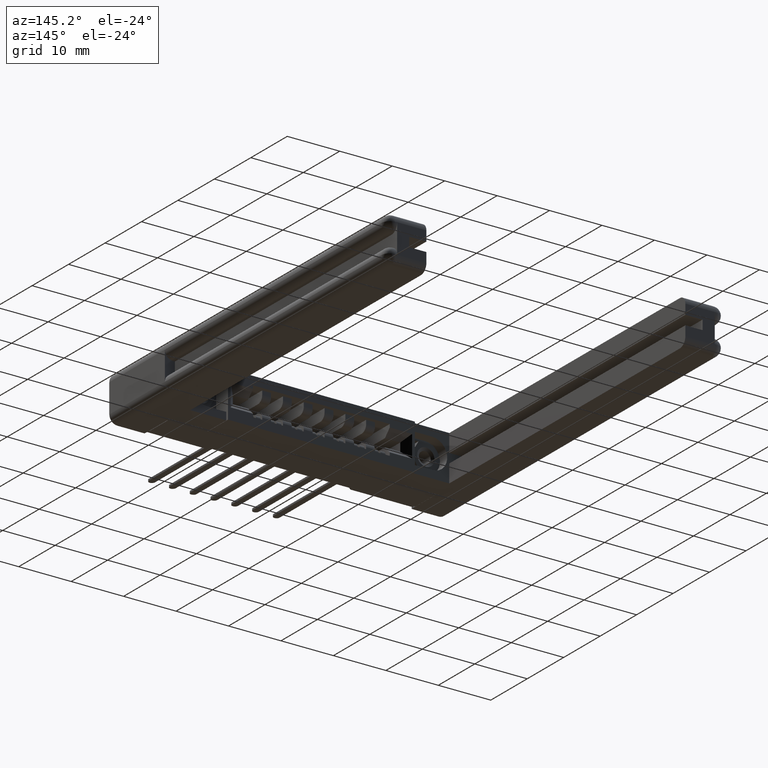
[diagram: clean part render]
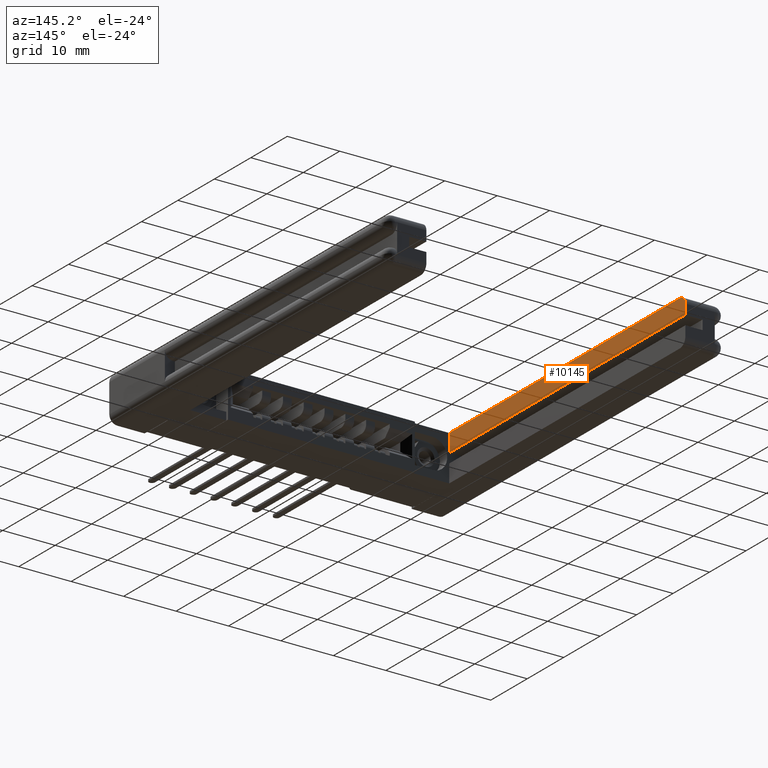
[diagram: same view with one face highlighted and labeled with its STEP entity id]
A machine part, auxiliary view. The second image highlights one B-rep face of the part: STEP entity #10145.
In plain terms, the highlighted planar face has unit normal (1, -0, 0).
Its self-contained STEP definition (entity closure, byte-faithful):
#49 = CARTESIAN_POINT ( 'NONE',  ( 0.2950000000000062572, 0.4500000000000002331, -0.3400000000000031886 ) ) ;
#120 = LINE ( 'NONE', #49, #10725 ) ;
#303 = PLANE ( 'NONE',  #9910 ) ;
#368 = DIRECTION ( 'NONE',  ( 1.000000000000000000, -5.915108984173514150E-16, 4.510281037539700911E-17 ) ) ;
#1310 = VECTOR ( 'NONE', #7962, 39.37007874015748143 ) ;
#1508 = EDGE_CURVE ( 'NONE', #12540, #2409, #10684, .T. ) ;
#1889 = EDGE_LOOP ( 'NONE', ( #3576, #4886, #8629, #7292, #2285 ) ) ;
#2285 = ORIENTED_EDGE ( 'NONE', *, *, #11294, .F. ) ;
#2409 = VERTEX_POINT ( 'NONE', #9083 ) ;
#3576 = ORIENTED_EDGE ( 'NONE', *, *, #8263, .T. ) ;
#3895 = LINE ( 'NONE', #6923, #1310 ) ;
#4477 = CARTESIAN_POINT ( 'NONE',  ( 0.2950000000000065348, 3.000000000000006661, -0.06000000000000130923 ) ) ;
#4797 = DIRECTION ( 'NONE',  ( 4.510281037539688585E-17, -2.334284690065025688E-16, 1.000000000000000000 ) ) ;
#4886 = ORIENTED_EDGE ( 'NONE', *, *, #10601, .T. ) ;
#4941 = LINE ( 'NONE', #11770, #6797 ) ;
#5316 = EDGE_CURVE ( 'NONE', #9702, #12540, #120, .T. ) ;
#5494 = CIRCLE ( 'NONE', #9898, 0.05999999999999990757 ) ;
#5626 = VERTEX_POINT ( 'NONE', #6297 ) ;
#5832 = CARTESIAN_POINT ( 'NONE',  ( 0.2950000000000065348, 3.000000000000006661, -8.878505979408855953E-16 ) ) ;
#6297 = CARTESIAN_POINT ( 'NONE',  ( 0.2950000000000065348, 3.000000000000006661, -0.1345000000000018126 ) ) ;
#6306 = DIRECTION ( 'NONE',  ( 5.691349986800556753E-16, 1.000000000000000000, -2.845674993400278377E-16 ) ) ;
#6551 = CARTESIAN_POINT ( 'NONE',  ( 0.2950000000000032596, 0.4500000000000002331, -8.878505979408855953E-16 ) ) ;
#6797 = VECTOR ( 'NONE', #4797, 39.37007874015748143 ) ;
#6858 = CARTESIAN_POINT ( 'NONE',  ( 0.2950000000000032596, 0.4500000000000002331, -0.1345000000000017015 ) ) ;
#6923 = CARTESIAN_POINT ( 'NONE',  ( 0.2950000000000032596, 0.4500000000000001221, -0.1345000000000017015 ) ) ;
#7159 = CARTESIAN_POINT ( 'NONE',  ( 0.2950000000000065348, 2.940000000000007052, -0.06000000000000130923 ) ) ;
#7292 = ORIENTED_EDGE ( 'NONE', *, *, #5316, .F. ) ;
#7356 = VECTOR ( 'NONE', #8707, 39.37007874015748143 ) ;
#7962 = DIRECTION ( 'NONE',  ( -5.915108984173514150E-16, -1.000000000000000000, 2.334284690065039000E-16 ) ) ;
#8149 = DIRECTION ( 'NONE',  ( 4.510281037539688585E-17, -2.334284690065025688E-16, 1.000000000000000000 ) ) ;
#8263 = EDGE_CURVE ( 'NONE', #5626, #9534, #4941, .T. ) ;
#8289 = DIRECTION ( 'NONE',  ( 5.915108984173514150E-16, 1.000000000000000000, -2.334284690065039000E-16 ) ) ;
#8629 = ORIENTED_EDGE ( 'NONE', *, *, #1508, .F. ) ;
#8707 = DIRECTION ( 'NONE',  ( 5.915108984173514150E-16, 1.000000000000000000, -2.334284690065039000E-16 ) ) ;
#9083 = CARTESIAN_POINT ( 'NONE',  ( 0.2950000000000065348, 2.940000000000007052, -8.878505979408855953E-16 ) ) ;
#9244 = DIRECTION ( 'NONE',  ( 1.000000000000000000, 8.325563096230176097E-16, 4.510281037539667631E-17 ) ) ;
#9262 = FACE_OUTER_BOUND ( 'NONE', #1889, .T. ) ;
#9534 = VERTEX_POINT ( 'NONE', #4477 ) ;
#9702 = VERTEX_POINT ( 'NONE', #6858 ) ;
#9898 = AXIS2_PLACEMENT_3D ( 'NONE', #7159, #9244, #6306 ) ;
#9910 = AXIS2_PLACEMENT_3D ( 'NONE', #10322, #368, #8289 ) ;
#10145 = ADVANCED_FACE ( 'NONE', ( #9262 ), #303, .T. ) ;
#10322 = CARTESIAN_POINT ( 'NONE',  ( 0.2950000000000065348, 3.000000000000006661, -0.3400000000000031886 ) ) ;
#10601 = EDGE_CURVE ( 'NONE', #9534, #2409, #5494, .T. ) ;
#10684 = LINE ( 'NONE', #5832, #7356 ) ;
#10725 = VECTOR ( 'NONE', #8149, 39.37007874015748143 ) ;
#11294 = EDGE_CURVE ( 'NONE', #5626, #9702, #3895, .T. ) ;
#11770 = CARTESIAN_POINT ( 'NONE',  ( 0.2950000000000065348, 3.000000000000006661, -0.3400000000000031886 ) ) ;
#12540 = VERTEX_POINT ( 'NONE', #6551 ) ;